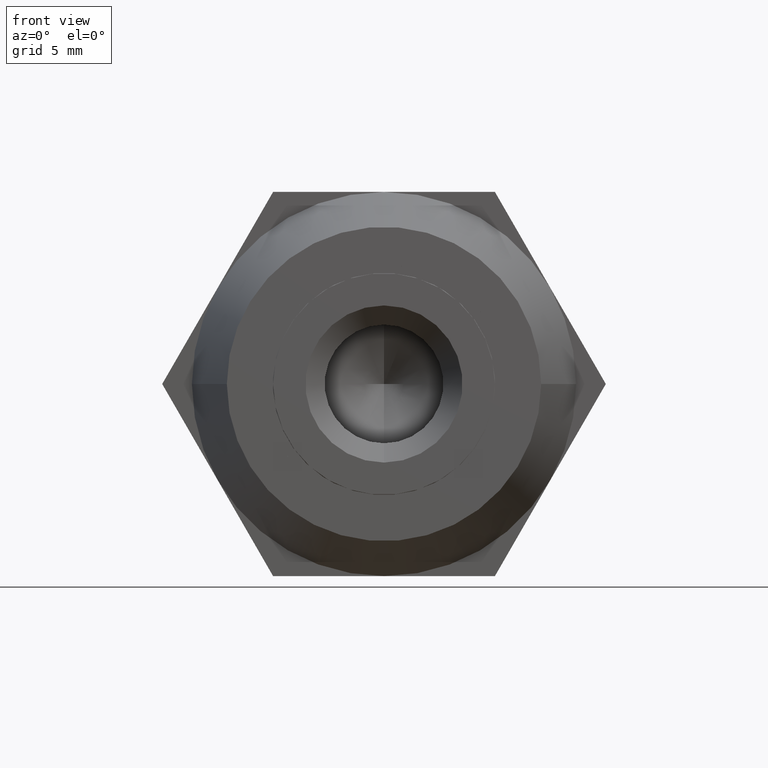
[diagram: clean part render]
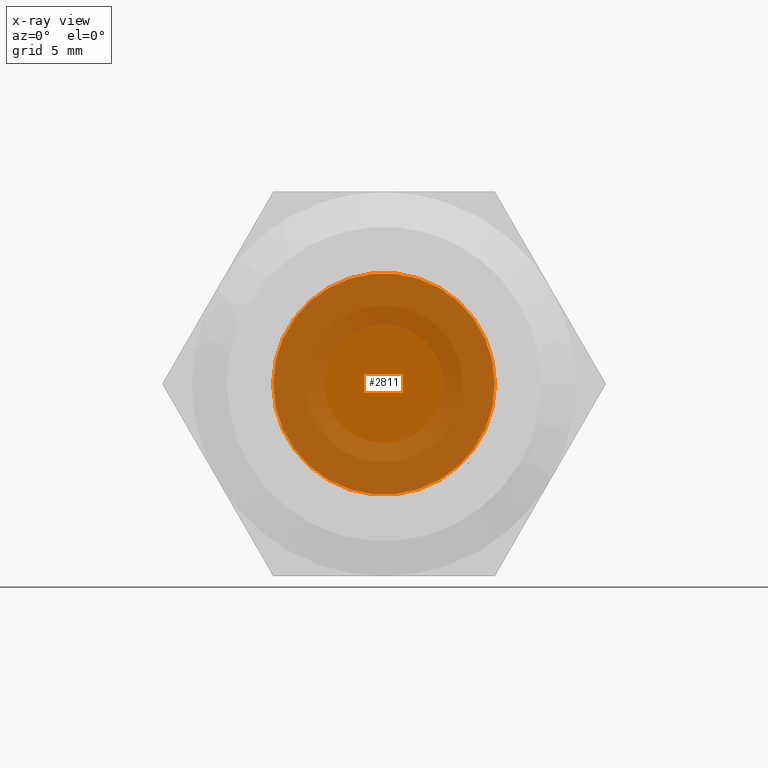
[diagram: x-ray — body ghosted, one internal face saturated and labeled with its STEP entity id]
A machine part, front view, then the same camera in x-ray: the body is ghosted and one INTERNAL B-rep face — a face not visible from any outside direction — is saturated and labeled: STEP entity #2811.
In plain terms, the highlighted planar face has unit normal (0, -1, 0).
Its self-contained STEP definition (entity closure, byte-faithful):
#12 = CARTESIAN_POINT ( 'NONE',  ( 3.469446951953615000E-015, -2.510000000000000200, 0.0000000000000000000 ) ) ;
#45 = EDGE_CURVE ( 'NONE', #1899, #2428, #1518, .T. ) ;
#161 = CIRCLE ( 'NONE', #1680, 6.349999999999999600 ) ;
#162 = EDGE_CURVE ( 'NONE', #2087, #3146, #2820, .T. ) ;
#231 = CARTESIAN_POINT ( 'NONE',  ( -6.349999999999999600, -2.510000000000000200, -1.301042606982603900E-015 ) ) ;
#252 = EDGE_CURVE ( 'NONE', #2428, #842, #161, .T. ) ;
#273 = DIRECTION ( 'NONE',  ( 0.0000000000000000000, 0.0000000000000000000, -1.000000000000000000 ) ) ;
#347 = EDGE_LOOP ( 'NONE', ( #1159, #606, #1381, #2194, #3339, #1489 ) ) ;
#408 = DIRECTION ( 'NONE',  ( -0.0000000000000000000, 1.000000000000000000, -0.0000000000000000000 ) ) ;
#504 = AXIS2_PLACEMENT_3D ( 'NONE', #2834, #1705, #3417 ) ;
#606 = ORIENTED_EDGE ( 'NONE', *, *, #2089, .F. ) ;
#663 = DIRECTION ( 'NONE',  ( -0.0000000000000000000, 1.000000000000000000, -0.0000000000000000000 ) ) ;
#769 = AXIS2_PLACEMENT_3D ( 'NONE', #2753, #1573, #3038 ) ;
#842 = VERTEX_POINT ( 'NONE', #231 ) ;
#930 = AXIS2_PLACEMENT_3D ( 'NONE', #1719, #3218, #273 ) ;
#1156 = AXIS2_PLACEMENT_3D ( 'NONE', #2420, #663, #1562 ) ;
#1159 = ORIENTED_EDGE ( 'NONE', *, *, #45, .F. ) ;
#1281 = CARTESIAN_POINT ( 'NONE',  ( 3.175000000000045100, -2.509999999999230200, 5.499261314031159900 ) ) ;
#1381 = ORIENTED_EDGE ( 'NONE', *, *, #162, .F. ) ;
#1454 = DIRECTION ( 'NONE',  ( 1.776356839400250500E-015, 0.0000000000000000000, -1.000000000000000000 ) ) ;
#1489 = ORIENTED_EDGE ( 'NONE', *, *, #252, .F. ) ;
#1518 = CIRCLE ( 'NONE', #504, 6.349999999999999600 ) ;
#1562 = DIRECTION ( 'NONE',  ( 0.0000000000000000000, 0.0000000000000000000, -1.000000000000000000 ) ) ;
#1573 = DIRECTION ( 'NONE',  ( -0.0000000000000000000, 1.000000000000000000, -0.0000000000000000000 ) ) ;
#1587 = CARTESIAN_POINT ( 'NONE',  ( 3.469446951953615000E-015, -2.510000000000000200, 0.0000000000000000000 ) ) ;
#1645 = CARTESIAN_POINT ( 'NONE',  ( -3.174999999999999800, -2.510000000000000200, -5.499261314031190100 ) ) ;
#1680 = AXIS2_PLACEMENT_3D ( 'NONE', #1587, #408, #3342 ) ;
#1705 = DIRECTION ( 'NONE',  ( -0.0000000000000000000, 1.000000000000000000, -0.0000000000000000000 ) ) ;
#1719 = CARTESIAN_POINT ( 'NONE',  ( 3.469446951953615000E-015, -2.510000000000000200, 0.0000000000000000000 ) ) ;
#1800 = AXIS2_PLACEMENT_3D ( 'NONE', #12, #3506, #1454 ) ;
#1813 = CARTESIAN_POINT ( 'NONE',  ( 3.174999999999955000, -2.509999999999230200, -5.499261314031209700 ) ) ;
#1819 = FACE_OUTER_BOUND ( 'NONE', #347, .T. ) ;
#1899 = VERTEX_POINT ( 'NONE', #1813 ) ;
#2087 = VERTEX_POINT ( 'NONE', #1281 ) ;
#2089 = EDGE_CURVE ( 'NONE', #3146, #1899, #3003, .T. ) ;
#2194 = ORIENTED_EDGE ( 'NONE', *, *, #2932, .F. ) ;
#2270 = CARTESIAN_POINT ( 'NONE',  ( 0.0000000000000000000, -2.510000000000000200, 0.0000000000000000000 ) ) ;
#2289 = DIRECTION ( 'NONE',  ( 0.0000000000000000000, 0.0000000000000000000, -1.000000000000000000 ) ) ;
#2420 = CARTESIAN_POINT ( 'NONE',  ( 3.469446951953615000E-015, -2.510000000000000200, 0.0000000000000000000 ) ) ;
#2428 = VERTEX_POINT ( 'NONE', #1645 ) ;
#2753 = CARTESIAN_POINT ( 'NONE',  ( 3.469446951953615000E-015, -2.510000000000000200, 0.0000000000000000000 ) ) ;
#2811 = ADVANCED_FACE ( 'NONE', ( #1819 ), #3741, .T. ) ;
#2819 = CARTESIAN_POINT ( 'NONE',  ( -3.174999999999950100, -2.509999999999230200, 5.499261314031209700 ) ) ;
#2820 = CIRCLE ( 'NONE', #1156, 6.349999999999999600 ) ;
#2834 = CARTESIAN_POINT ( 'NONE',  ( 3.469446951953615000E-015, -2.510000000000000200, 0.0000000000000000000 ) ) ;
#2879 = CIRCLE ( 'NONE', #1800, 6.349999999999999600 ) ;
#2909 = AXIS2_PLACEMENT_3D ( 'NONE', #2270, #3173, #2289 ) ;
#2932 = EDGE_CURVE ( 'NONE', #3508, #2087, #2879, .T. ) ;
#3003 = CIRCLE ( 'NONE', #769, 6.349999999999999600 ) ;
#3038 = DIRECTION ( 'NONE',  ( 8.881784197001254300E-016, 0.0000000000000000000, -1.000000000000000000 ) ) ;
#3076 = CIRCLE ( 'NONE', #930, 6.349999999999999600 ) ;
#3146 = VERTEX_POINT ( 'NONE', #3607 ) ;
#3173 = DIRECTION ( 'NONE',  ( 0.0000000000000000000, -1.000000000000000000, 0.0000000000000000000 ) ) ;
#3218 = DIRECTION ( 'NONE',  ( -0.0000000000000000000, 1.000000000000000000, -0.0000000000000000000 ) ) ;
#3339 = ORIENTED_EDGE ( 'NONE', *, *, #3695, .F. ) ;
#3342 = DIRECTION ( 'NONE',  ( 0.0000000000000000000, 0.0000000000000000000, -1.000000000000000000 ) ) ;
#3417 = DIRECTION ( 'NONE',  ( 0.0000000000000000000, 0.0000000000000000000, -1.000000000000000000 ) ) ;
#3506 = DIRECTION ( 'NONE',  ( -0.0000000000000000000, 1.000000000000000000, -0.0000000000000000000 ) ) ;
#3508 = VERTEX_POINT ( 'NONE', #2819 ) ;
#3607 = CARTESIAN_POINT ( 'NONE',  ( 6.349999999999999600, -2.510000000000000200, 1.301042606982603900E-015 ) ) ;
#3695 = EDGE_CURVE ( 'NONE', #842, #3508, #3076, .T. ) ;
#3741 = PLANE ( 'NONE',  #2909 ) ;